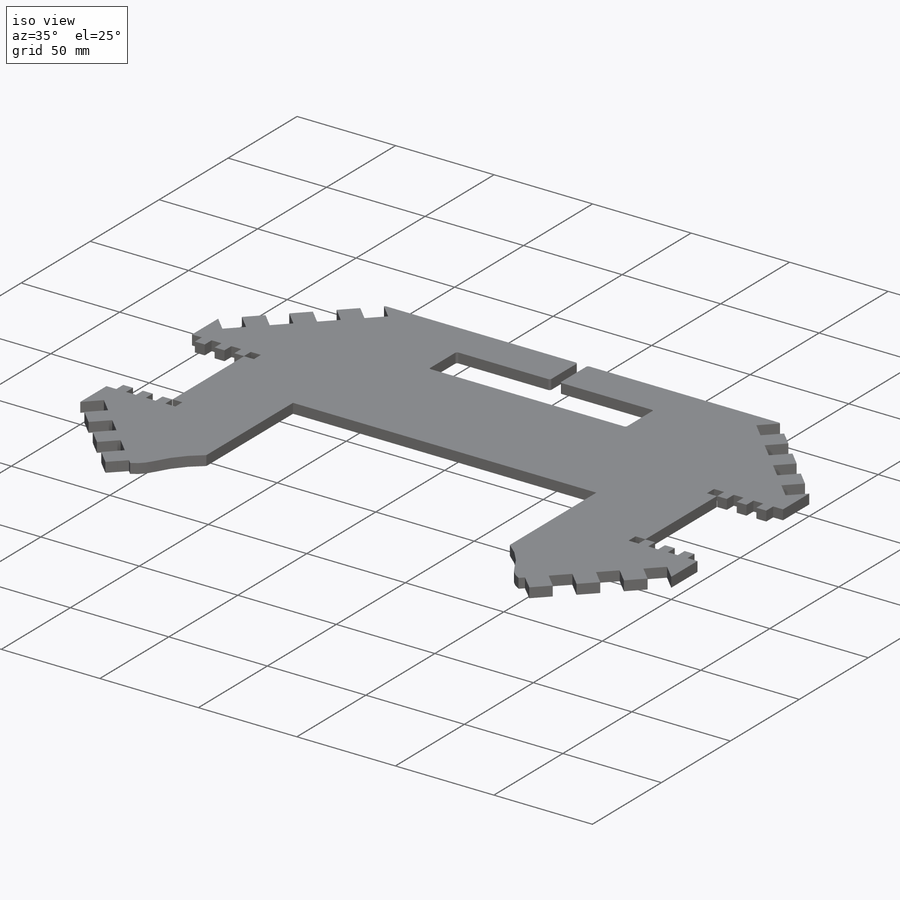
[diagram: iso view]
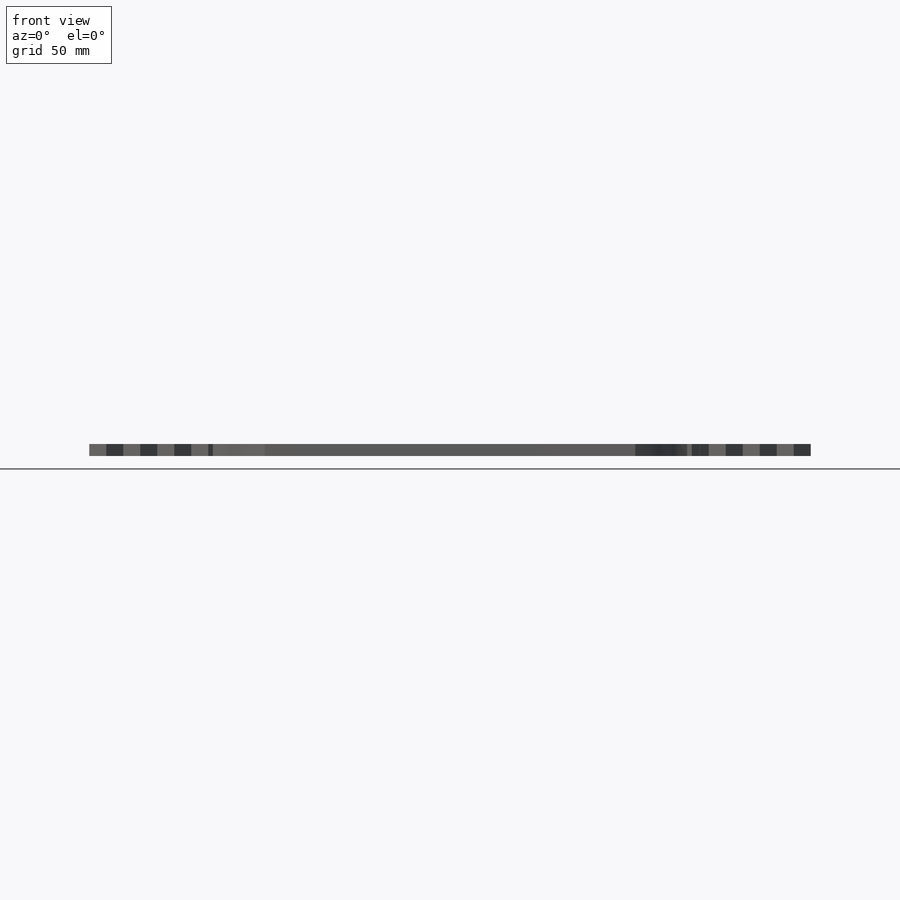
[diagram: front view]
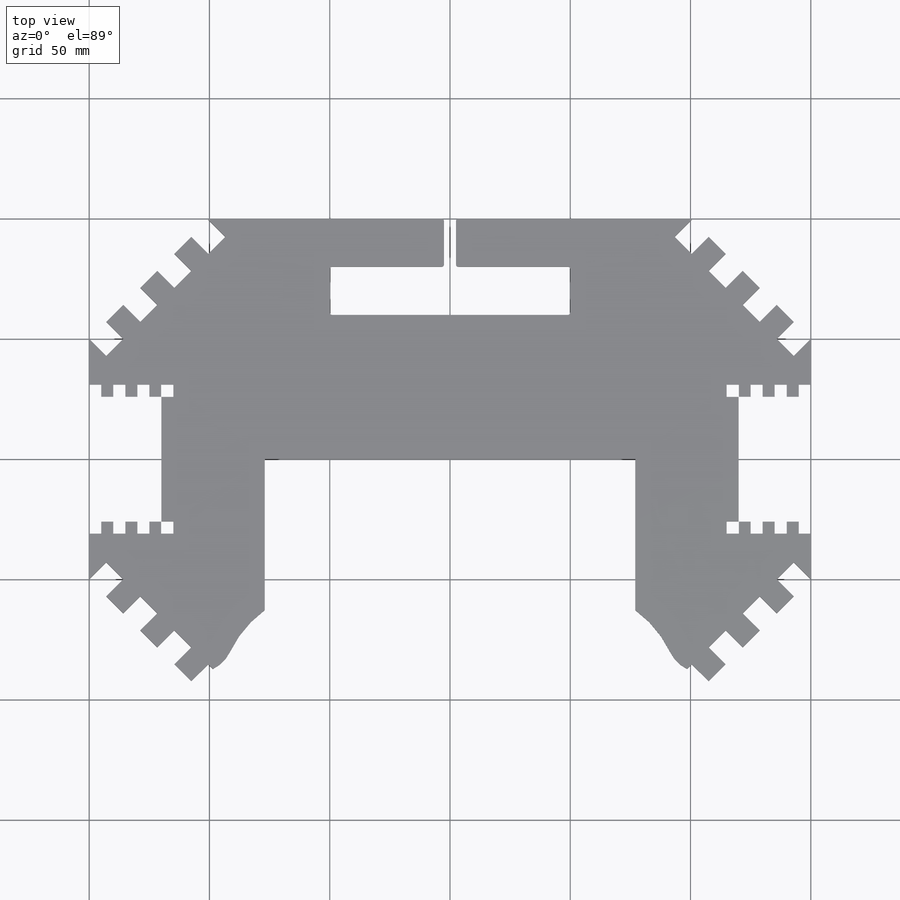
[diagram: top view]
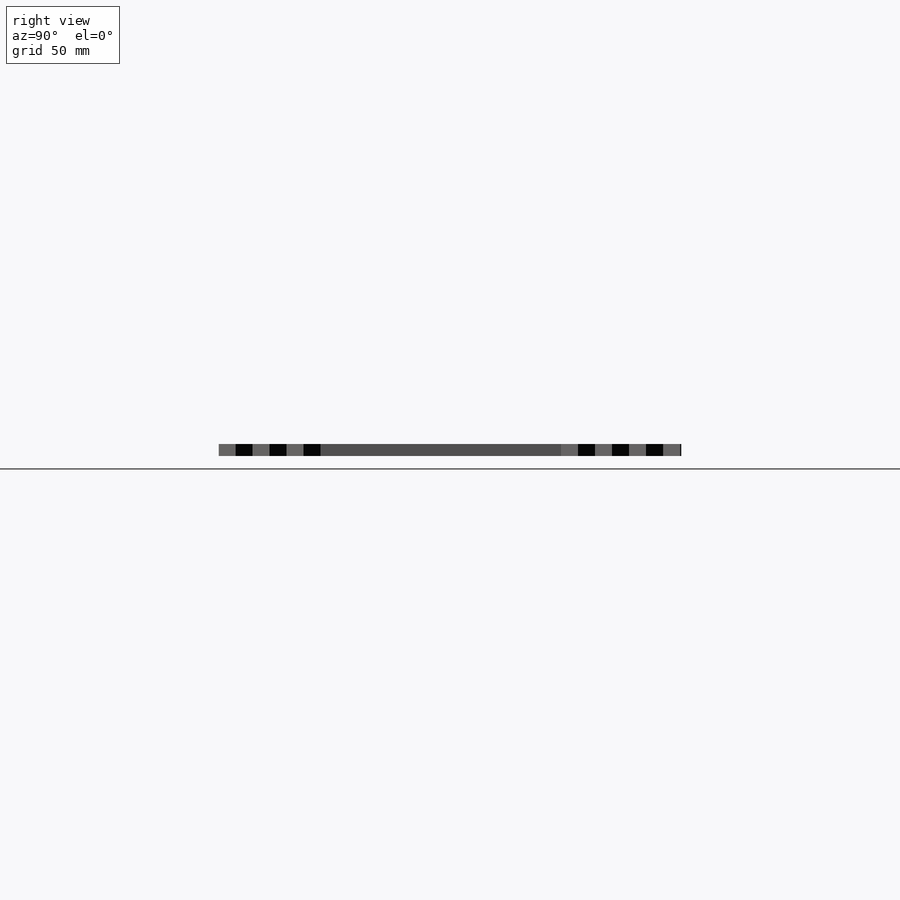
[diagram: right view]
SOLIDWORKS PART (.sldprt)
format: sldprt  version: not decoded by parser v0  size: 773,120 bytes
history: native  units: mm
features: sketch x10, cut_extrude x8, plane x3, mirror x3, fillet x3, extrude x2, material x1, pattern_linear x1 (+10 scaffold rows collapsed)
feature tree (41):
  scaffold x10  (default folders/planes/origin — collapsed)
  material  "Balsa"
  plane  "Plan de face"
  plane  "Plan de dessus"
  plane  "Plan de droite"
  sketch  "Esquisse1"  dims[D1=300.0mm D2=200.0mm D3=150.0mm D4=100.0mm]
  extrude  "Boss.-Extru.1"  Depth=5mm
  sketch  "Esquisse2"  dims[D1=50.0mm D2=50.0mm D3=50.0mm D4=50.0mm D5=50.0mm D6=50.0mm D7=50.0mm D8=50.0mm]
  cut_extrude  "Enlèv. mat.-Extru.1"  Depth=10mm
  sketch  "Esquisse10"  dims[D2=92.0mm D1=50.0mm]
  cut_extrude  "Enlèv. mat.-Extru.9"  Depth=10mm
  mirror  "Symétrie2"
  fillet  "Congé2"  Radius=15mm
  fillet  "Congé3"  Radius=15mm
  sketch  "Esquisse11"  dims[D1=10.0mm D2=10.0mm]
  cut_extrude  "Enlèv. mat.-Extru.10"  Depth=10mm
  pattern_linear  "Répétition linéaire1"  Count1=4 Count2=1 Spacing1=20mm Spacing2=10mm
  mirror  "Symétrie3"
  mirror  "Symétrie4"
  sketch  "Esquisse16"  dims[c1.D1=64.0mm c1.D2=55.0mm c1.D3=15.0mm c1.D4=64.0mm c1.D5=18.0mm c1.D6=18.0mm c1.D7=55.0mm c1.D8=15.0mm c2.D1=154.0mm c2.D2=77.0mm c2.D3=0.0mm c2.D4=100.0mm]
  cut_extrude  "Enlèv. mat.-Extru.15"  Depth=10mm
  sketch  "Esquisse24"  dims[D1=52.0mm D2=30.0mm D3=24.0mm]
  cut_extrude  "Enlèv. mat.-Extru.18"  Depth=10mm
  sketch  "Esquisse25"  dims[c1.D1=5.0mm c1.D2=5.0mm c1.D4=5.1mm c1.D5=5.1mm c2.D1=5.1mm c2.D2=5.1mm c2.D3=5.0mm c2.D4=0.1mm c2.D5=5.0mm c2.D6=5.1mm c2.D7=5.0mm c2.D8=0.1mm c2.D10=5.0mm c2.D9=5.1mm c3.D10=5.1mm c3.D11=4.9mm c3.D12=5.0mm c3.D13=5.0mm c3.D14=5.1mm c3.D15=5.0mm c3.D16=5.0mm c3.D17=5.0mm c3.D18=0.0mm]
  cut_extrude  "Enlèv. mat.-Extru.21"  Depth=10mm
  sketch  "Esquisse26"  dims[D1=20.0mm D2=100.0mm D3=20.0mm D4=50.0mm]
  cut_extrude  "Enlèv. mat.-Extru.22"  Depth=10mm
  sketch  "Esquisse27"  dims[D1=97.5mm D2=97.5mm]
  cut_extrude  "Enlèv. mat.-Extru.23"  Depth=10mm
  fillet  "Congé4"  Radius=1mm
  sketch  "Esquisse28"
  extrude  "Boss.-Extru.2"  Depth=5mm
decode coverage: 23 of 27 modeling features carry decoded parameters
note: suppression state not decoded; provenance and decode notes live in map.json
